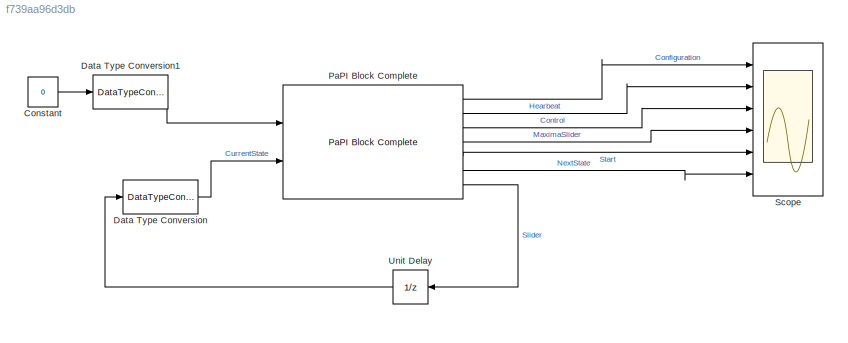
MODEL slx_f739aa96d3db
KIND model
BLOCK [Constant] Constant
  Value = 0
BLOCK [DataTypeConversion] Data Type Conversion
  RndMeth = Floor
  SaturateOnIntegerOverflow = off
BLOCK [DataTypeConversion] Data Type Conversion1
  RndMeth = Floor
  SaturateOnIntegerOverflow = off
BLOCK [Reference] PaPI Block Complete  REF=PaPI/PaPI Block Complete
  Ports = [2, 7]
  SourceBlock = PaPI/PaPI Block Complete
  SourceType = PaPI Block Complete
  UDPLocalPort = 20001
  UDPRemoteIP = '127.0.0.1'
  UDPRemotePort = 20000
  UDPStart = on
  amount_parameters = [45,1,1,8,1,1,1]
  define_inputs = [1]
  json_string = rehastim_config(1)
  output_size = 700
  sample_time = -1
  split_inputs = [1]
BLOCK [Scope] Scope
  Floating = off
  MaxDataPoints = 50000
  NumInputPorts = 6
  Ports = [6]
  ShowLegends = off
  TimeRange = 10
  YMax = 80~2~1~1~1~3
  YMin = 0~1~-1~-1~-1~1
BLOCK [UnitDelay] Unit Delay
  InputProcessing = Elements as channels (sample based)
  SampleTime = -1
LINE Constant:1 -> Data Type Conversion1:1
LINE Data Type Conversion1:1 -> PaPI Block Complete:1
LINE Data Type Conversion:1 -> PaPI Block Complete:2
LINE PaPI Block Complete:1 -> Scope:1
LINE PaPI Block Complete:2 -> Scope:2
LINE PaPI Block Complete:3 -> Scope:3
LINE PaPI Block Complete:4 -> Scope:4
LINE PaPI Block Complete:5 -> Scope:5
LINE PaPI Block Complete:6 -> Scope:6
LINE PaPI Block Complete:7 -> Unit Delay:1
LINE Unit Delay:1 -> Data Type Conversion:1
